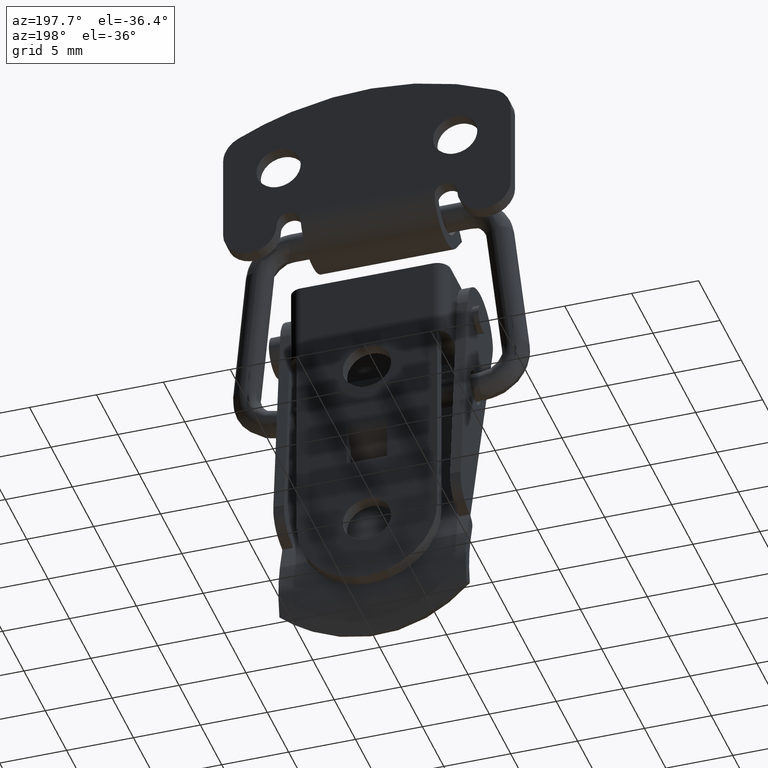
[diagram: clean part render]
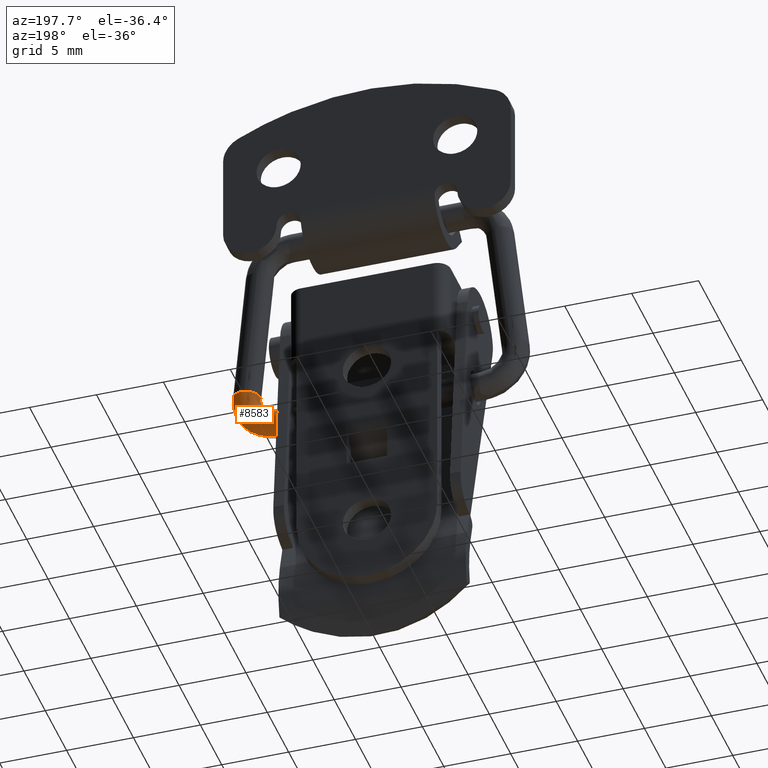
[diagram: same view with one face highlighted and labeled with its STEP entity id]
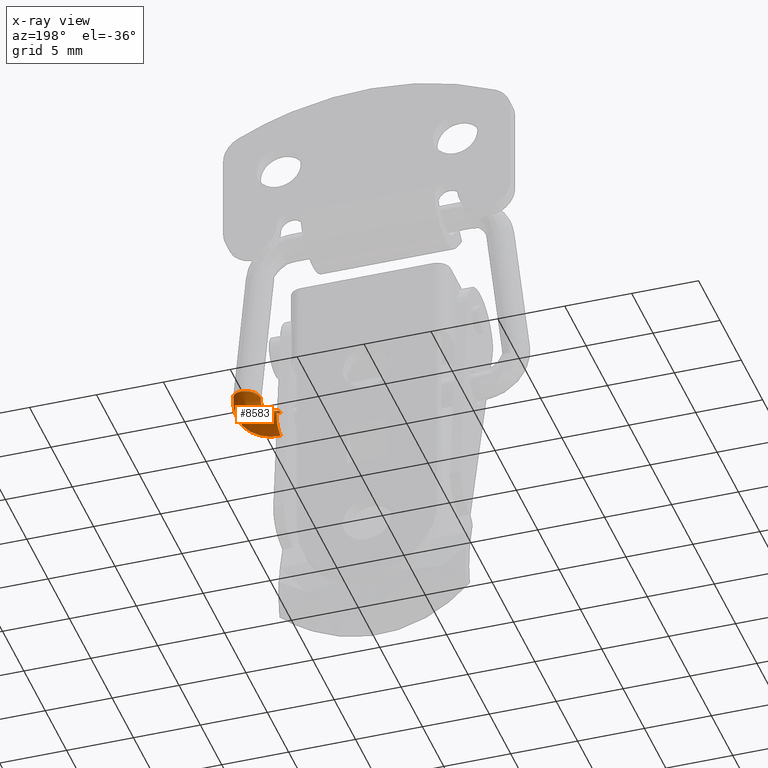
[diagram: x-ray of the same camera — body ghosted, the highlighted face saturated]
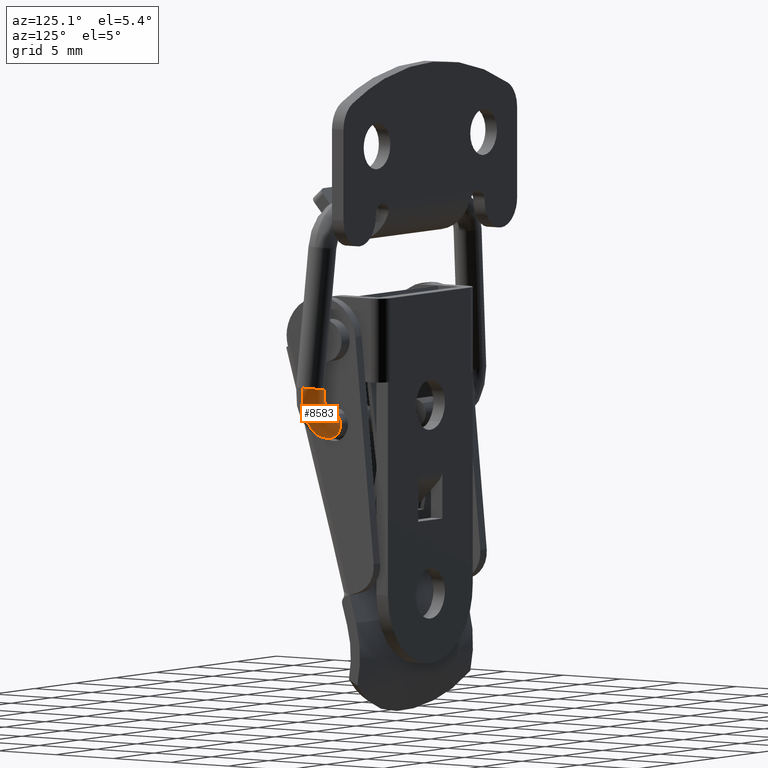
[diagram: same view with one face highlighted and labeled with its STEP entity id]
A machine part, auxiliary view. The second image highlights one B-rep face of the part: STEP entity #8583.
The next image is the same camera in x-ray: the body ghosted, the highlighted face saturated — about 0% of this face is hidden behind the body in this view.
A second angle (auxiliary view) of the same face is appended — the face is thin or edge-on in the first view.
In plain terms, the highlighted face is a freeform B-spline surface patch.
Its self-contained STEP definition (entity closure, byte-faithful):
#8382=CARTESIAN_POINT('',(11.035672258744480,-0.371129360316105,-12.133880809461919));
#8383=VERTEX_POINT('',#8382);
#8393=CARTESIAN_POINT('',(9.930737784144906,0.584828204488616,-12.282377977412660));
#8394=VERTEX_POINT('',#8393);
#8395=CARTESIAN_POINT('',(9.930737784144906,0.584828204488616,-12.282377977412660));
#8396=CARTESIAN_POINT('',(9.956593806394967,0.587911257340736,-12.279751500370789));
#8397=CARTESIAN_POINT('',(9.982573692724134,0.589950719385880,-12.277077162433351));
#8398=CARTESIAN_POINT('',(10.268816325452940,0.600536965121589,-12.247215551813960));
#8399=CARTESIAN_POINT('',(10.530995937364469,0.502457236254047,-12.216271726340789));
#8400=CARTESIAN_POINT('',(10.911257439581510,0.146270266704117,-12.164260132686980));
#8401=CARTESIAN_POINT('',(11.026997743168280,-0.109643634204439,-12.143512643199349));
#8402=CARTESIAN_POINT('',(11.035672258744480,-0.371129360316105,-12.133880809461919));
#8403=B_SPLINE_CURVE_WITH_KNOTS('',3,(#8395,#8396,#8397,#8398,#8399,#8400,#8401,#8402),.UNSPECIFIED.,.F.,.U.,(4,2,2,4),(0.737494925109924,0.750000000000000,0.875000000000000,1.0),.UNSPECIFIED.);
#8404=EDGE_CURVE('',#8394,#8383,#8403,.T.);
#8436=CARTESIAN_POINT('',(9.047813868555956,-0.444708585456292,-12.341257563667540));
#8437=VERTEX_POINT('',#8436);
#8438=CARTESIAN_POINT('',(9.047813868555956,-0.444708585456292,-12.341257563667540));
#8439=CARTESIAN_POINT('',(9.039139208739455,-0.183221601282782,-12.350889454565721));
#8440=CARTESIAN_POINT('',(9.137636415689102,0.080623410927958,-12.349287365944940));
#8441=CARTESIAN_POINT('',(9.475566491990152,0.444874829758265,-12.325758700251511));
#8442=CARTESIAN_POINT('',(9.698140167941709,0.557078819106505,-12.306004956599489));
#8443=CARTESIAN_POINT('',(9.930737784144906,0.584828204488616,-12.282377977412660));
#8444=B_SPLINE_CURVE_WITH_KNOTS('',3,(#8438,#8439,#8440,#8441,#8442,#8443),.UNSPECIFIED.,.F.,.U.,(4,2,4),(0.500000000000000,0.625000000000000,0.737494925109924),.UNSPECIFIED.);
#8445=EDGE_CURVE('',#8437,#8394,#8444,.T.);
#8462=CARTESIAN_POINT('',(7.530313857522105,-0.531415989654740,-14.000001893939601));
#8463=CARTESIAN_POINT('',(7.530609073091807,-0.259135884691809,-13.991524533552230));
#8464=CARTESIAN_POINT('',(7.528931945900594,0.014581789626821,-14.100369565610730));
#8465=CARTESIAN_POINT('',(7.522797751821255,0.392226807959836,-14.477693796415821));
#8466=CARTESIAN_POINT('',(7.514134285698368,0.607772960199918,-15.000004087658571));
#8467=CARTESIAN_POINT('',(7.505229147433965,0.392226720764202,-15.522314556524741));
#8468=CARTESIAN_POINT('',(7.498671534152111,0.014581640381485,-15.899639039562970));
#8469=CARTESIAN_POINT('',(7.496687511565529,-0.259136051695914,-16.008484192372631));
#8470=CARTESIAN_POINT('',(7.496677442856818,-0.531416155513141,-16.000006869898250));
#8471=CARTESIAN_POINT('',(7.538726462031523,-0.531414758591102,-13.999964961908880));
#8472=CARTESIAN_POINT('',(7.538923286782261,-0.259134668182239,-13.991488038144441));
#8473=CARTESIAN_POINT('',(7.537805120346489,0.014583088825900,-14.100330589512660));
#8474=CARTESIAN_POINT('',(7.533715359020577,0.392228410158041,-14.477645730327730));
#8475=CARTESIAN_POINT('',(7.527939293214529,0.607774991232160,-14.999943156529531));
#8476=CARTESIAN_POINT('',(7.522002100891314,0.392229194157722,-15.522240354542600));
#8477=CARTESIAN_POINT('',(7.517630039496487,0.014584439831907,-15.899555055863930));
#8478=CARTESIAN_POINT('',(7.516307261195627,-0.259133153519876,-16.008397246902391));
#8479=CARTESIAN_POINT('',(7.516300548233043,-0.531413256834868,-15.999919909360960));
#8480=CARTESIAN_POINT('',(7.967950728501312,-0.531538342241765,-14.003672464854530));
#8481=CARTESIAN_POINT('',(7.963127408072996,-0.259256814321553,-13.995152415797349));
#8482=CARTESIAN_POINT('',(7.990528814608827,0.014452776552148,-14.104239950928831));
#8483=CARTESIAN_POINT('',(8.090751115058012,0.392068259885927,-14.482450230815720));
#8484=CARTESIAN_POINT('',(8.232297419360252,0.607572748789839,-15.006010421051840));
#8485=CARTESIAN_POINT('',(8.377792234670421,0.391983769968122,-15.529603070683770));
#8486=CARTESIAN_POINT('',(8.484932483764339,0.014307233920411,-15.907871223130730));
#8487=CARTESIAN_POINT('',(8.517348038743522,-0.259419970948013,-16.017001759521289));
#8488=CARTESIAN_POINT('',(8.517512544320086,-0.531700122974895,-16.008525883336159));
#8489=CARTESIAN_POINT('',(8.390923222230299,-0.525240231248042,-13.814729141343831));
#8490=CARTESIAN_POINT('',(8.381156024350577,-0.253032374298889,-13.808419221372739));
#8491=CARTESIAN_POINT('',(8.436643725150391,0.021095742855537,-13.904950968341319));
#8492=CARTESIAN_POINT('',(8.639593359459779,0.400241982483480,-14.237238560248850));
#8493=CARTESIAN_POINT('',(8.926223910038511,0.617908347688892,-14.695942462469400));
#8494=CARTESIAN_POINT('',(9.220850218280287,0.404541470815032,-15.152872054437710));
#8495=CARTESIAN_POINT('',(9.437808721058161,0.028501242081090,-15.482050987981539));
#8496=CARTESIAN_POINT('',(9.503450070215274,-0.244730897797562,-15.576329574820029));
#8497=CARTESIAN_POINT('',(9.503783193282242,-0.517008537483841,-15.567778328416351));
#8498=CARTESIAN_POINT('',(8.952197529253215,-0.504449890089997,-13.191018906600950));
#8499=CARTESIAN_POINT('',(8.935876812196009,-0.232484784141159,-13.191991516638851));
#8500=CARTESIAN_POINT('',(9.028595222949759,0.043022407650647,-13.247151024487501));
#8501=CARTESIAN_POINT('',(9.367718439184175,0.427212696487741,-13.428117140120460));
#8502=CARTESIAN_POINT('',(9.846670148128901,0.652002891242825,-13.673106155854249));
#8503=CARTESIAN_POINT('',(10.338982546613209,0.445958568075979,-13.910359136605919));
#8504=CARTESIAN_POINT('',(10.701514193940440,0.075310560757390,-14.077771427691310));
#8505=CARTESIAN_POINT('',(10.811199069796951,-0.196290148759586,-14.123107103680510));
#8506=CARTESIAN_POINT('',(10.811755709212081,-0.468559509105261,-14.114307477060340));
#8507=CARTESIAN_POINT('',(9.095840434232660,-0.489756320603402,-12.750211826639971));
#8508=CARTESIAN_POINT('',(9.077846046625792,-0.217962593410516,-12.756325799323729));
#8509=CARTESIAN_POINT('',(9.180072611006994,0.058518205437004,-12.782277095688700));
#8510=CARTESIAN_POINT('',(9.553971615582462,0.446269518405876,-12.856412487987750));
#8511=CARTESIAN_POINT('',(10.082036597291539,0.676089026949506,-12.950522090817000));
#8512=CARTESIAN_POINT('',(10.624829898119090,0.475214305947384,-13.032687007194371));
#8513=CARTESIAN_POINT('',(11.024534465914421,0.108373116486045,-13.085894762933970));
#8514=CARTESIAN_POINT('',(11.145465985798520,-0.162075830946116,-13.096677576478751));
#8515=CARTESIAN_POINT('',(11.146079698894070,-0.434339346224255,-13.087702597831770));
#8516=CARTESIAN_POINT('',(9.047051651845388,-0.475527735935068,-12.323354281770261));
#8517=CARTESIAN_POINT('',(9.029625902054608,-0.203899921828714,-12.334445647084211));
#8518=CARTESIAN_POINT('',(9.128622032468471,0.073523433542779,-12.332120247534080));
#8519=CARTESIAN_POINT('',(9.490706423561996,0.464722207112381,-12.302831821167270));
#8520=CARTESIAN_POINT('',(10.002086795934151,0.699410650172137,-12.250873387729341));
#8521=CARTESIAN_POINT('',(10.527732573662730,0.503540694109381,-12.182895355339101));
#8522=CARTESIAN_POINT('',(10.914810452680760,0.140384941928254,-12.125539992284780));
#8523=CARTESIAN_POINT('',(11.031921858302020,-0.128948966645505,-12.102871639972960));
#8524=CARTESIAN_POINT('',(11.032516186663150,-0.401206823210312,-12.093726899925960));
#8525=CARTESIAN_POINT('',(9.046204512519049,-0.475248479478698,-12.314976587990060));
#8526=CARTESIAN_POINT('',(9.028788636501302,-0.203623921680365,-12.326165642545240));
#8527=CARTESIAN_POINT('',(9.127728673980094,0.073817932860937,-12.323285267897210));
#8528=CARTESIAN_POINT('',(9.489607918305678,0.465084368320674,-12.291966984814451));
#8529=CARTESIAN_POINT('',(10.000698583833080,0.699868371948671,-12.237141734314800));
#8530=CARTESIAN_POINT('',(10.526046619649209,0.504096642332591,-12.166216908513430));
#8531=CARTESIAN_POINT('',(10.912905255057341,0.141013222699299,-12.106691569016901));
#8532=CARTESIAN_POINT('',(11.029950330232920,-0.128298801470039,-12.083366684570549));
#8533=CARTESIAN_POINT('',(11.030544322009961,-0.400556546973638,-12.074218612687281));
#8534=B_SPLINE_SURFACE_WITH_KNOTS('',3,3,((#8462,#8471,#8480,#8489,#8498,#8507,#8516,#8525),(#8463,#8472,#8481,#8490,#8499,#8508,#8517,#8526),(#8464,#8473,#8482,#8491,#8500,#8509,#8518,#8527),(#8465,#8474,#8483,#8492,#8501,#8510,#8519,#8528),(#8466,#8475,#8484,#8493,#8502,#8511,#8520,#8529),(#8467,#8476,#8485,#8494,#8503,#8512,#8521,#8530),(#8468,#8477,#8486,#8495,#8504,#8513,#8522,#8531),(#8469,#8478,#8487,#8496,#8505,#8514,#8523,#8532),(#8470,#8479,#8488,#8497,#8506,#8515,#8524,#8533)),.UNSPECIFIED.,.F.,.F.,.U.,(4,2,1,2,4),(4,1,2,1,4),(0.0,0.817310819797104,1.603186608063550,2.389062396329996,3.206373216127100),(0.0,0.058881670575840,3.002965199367826,5.947048728159813,6.005930398735654),.UNSPECIFIED.);
#8535=CARTESIAN_POINT('',(7.555555205068462,-0.499999999999922,-14.0));
#8536=VERTEX_POINT('',#8535);
#8537=CARTESIAN_POINT('',(7.555555205068461,-0.499999999999922,-14.0));
#8538=CARTESIAN_POINT('',(7.975950797682740,-0.499998949210243,-13.999968470112030));
#8539=CARTESIAN_POINT('',(8.390340529641165,-0.493828614333247,-13.814858429976960));
#8540=CARTESIAN_POINT('',(8.951223852373365,-0.473052755748660,-13.191582672437780));
#8541=CARTESIAN_POINT('',(9.091953093170051,-0.458657317298870,-12.759719523488180));
#8542=CARTESIAN_POINT('',(9.047813868555956,-0.444708585456292,-12.341257563667540));
#8543=B_SPLINE_CURVE_WITH_KNOTS('',3,(#8537,#8538,#8539,#8540,#8541,#8542),.UNSPECIFIED.,.F.,.U.,(4,2,4),(0.078617861714707,0.114782246577243,0.150946631439779),.UNSPECIFIED.);
#8544=EDGE_CURVE('',#8536,#8437,#8543,.T.);
#8545=ORIENTED_EDGE('',*,*,#8544,.T.);
#8546=ORIENTED_EDGE('',*,*,#8445,.T.);
#8547=ORIENTED_EDGE('',*,*,#8404,.T.);
#8548=CARTESIAN_POINT('',(7.555555205068464,-0.499999999999921,-16.0));
#8549=VERTEX_POINT('',#8548);
#8550=CARTESIAN_POINT('',(7.555555205068461,-0.499999999999922,-16.0));
#8551=CARTESIAN_POINT('',(8.536557708881130,-0.499996185328313,-15.999885550209150));
#8552=CARTESIAN_POINT('',(9.503200500038165,-0.485596919924114,-15.567907597701581));
#8553=CARTESIAN_POINT('',(10.810782013078271,-0.437162374810856,-14.114871244305039));
#8554=CARTESIAN_POINT('',(11.138454507608140,-0.403623214865792,-13.108696453012840));
#8555=CARTESIAN_POINT('',(11.035672258744480,-0.371129360316105,-12.133880809461919));
#8556=B_SPLINE_CURVE_WITH_KNOTS('',3,(#8550,#8551,#8552,#8553,#8554,#8555),.UNSPECIFIED.,.F.,.U.,(4,2,4),(0.078617861714707,0.114782246577243,0.150946631439779),.UNSPECIFIED.);
#8557=EDGE_CURVE('',#8549,#8383,#8556,.T.);
#8558=ORIENTED_EDGE('',*,*,#8557,.F.);
#8559=CARTESIAN_POINT('',(7.555555205068465,0.175575890944443,-14.262737677638810));
#8560=VERTEX_POINT('',#8559);
#8561=CARTESIAN_POINT('',(7.555555205068465,0.175575890944443,-14.262737677638810));
#8562=CARTESIAN_POINT('',(7.555555205068465,0.186314225114466,-14.272542121481260));
#8563=CARTESIAN_POINT('',(7.555555205068465,0.196833343806252,-14.282590648917051));
#8564=CARTESIAN_POINT('',(7.555555205068466,0.392239972553639,-14.477999027337940));
#8565=CARTESIAN_POINT('',(7.555555205068468,0.500011542598128,-14.738187970048340));
#8566=CARTESIAN_POINT('',(7.555555205068465,0.500007881239247,-15.261790755788651));
#8567=CARTESIAN_POINT('',(7.555555205068465,0.392232672381912,-15.521980340454750));
#8568=CARTESIAN_POINT('',(7.555555205068462,0.021988831792257,-15.892224523576941));
#8569=CARTESIAN_POINT('',(7.555555205068465,-0.238199900305868,-15.999999220289579));
#8570=CARTESIAN_POINT('',(7.555555205068464,-0.499999999999921,-16.0));
#8571=B_SPLINE_CURVE_WITH_KNOTS('',3,(#8561,#8562,#8563,#8564,#8565,#8566,#8567,#8568,#8569,#8570),.UNSPECIFIED.,.F.,.U.,(4,2,2,2,4),(0.618053604024816,0.625000000000000,0.750000000000000,0.875000000000000,1.0),.UNSPECIFIED.);
#8572=EDGE_CURVE('',#8560,#8549,#8571,.T.);
#8573=ORIENTED_EDGE('',*,*,#8572,.F.);
#8574=CARTESIAN_POINT('',(7.555555205068462,-0.499999999999922,-14.0));
#8575=CARTESIAN_POINT('',(7.555555205068463,-0.252744664035783,-13.999995130608740));
#8576=CARTESIAN_POINT('',(7.555555205068464,-0.006926602517294,-14.096117315948810));
#8577=CARTESIAN_POINT('',(7.555555205068465,0.175575890944443,-14.262737677638810));
#8578=B_SPLINE_CURVE_WITH_KNOTS('',3,(#8574,#8575,#8576,#8577),.UNSPECIFIED.,.F.,.U.,(4,4),(0.500000000000000,0.618053604024816),.UNSPECIFIED.);
#8579=EDGE_CURVE('',#8536,#8560,#8578,.T.);
#8580=ORIENTED_EDGE('',*,*,#8579,.F.);
#8581=EDGE_LOOP('',(#8545,#8546,#8547,#8558,#8573,#8580));
#8582=FACE_OUTER_BOUND('',#8581,.T.);
#8583=ADVANCED_FACE('',(#8582),#8534,.F.);